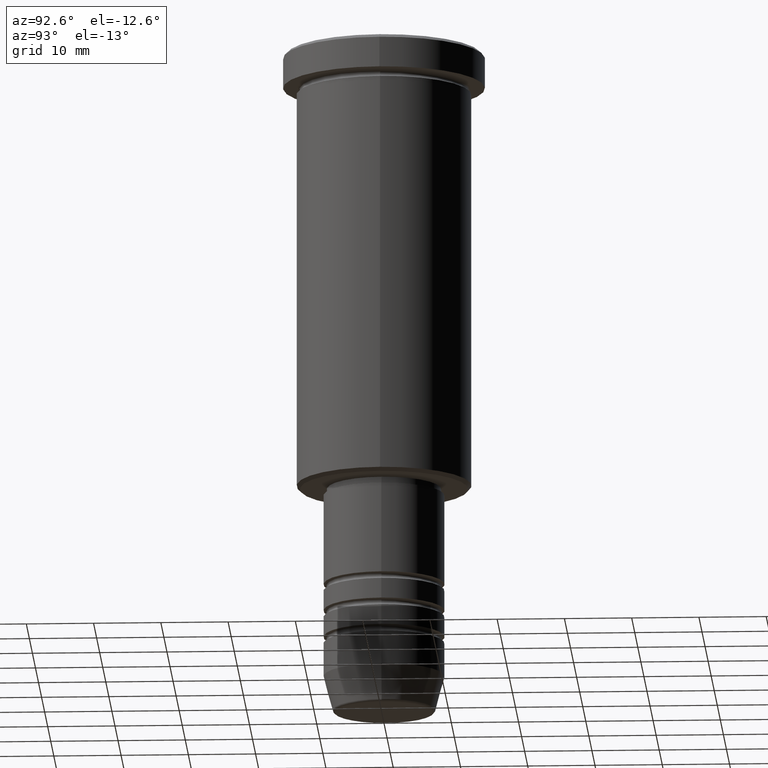
[diagram: clean part render]
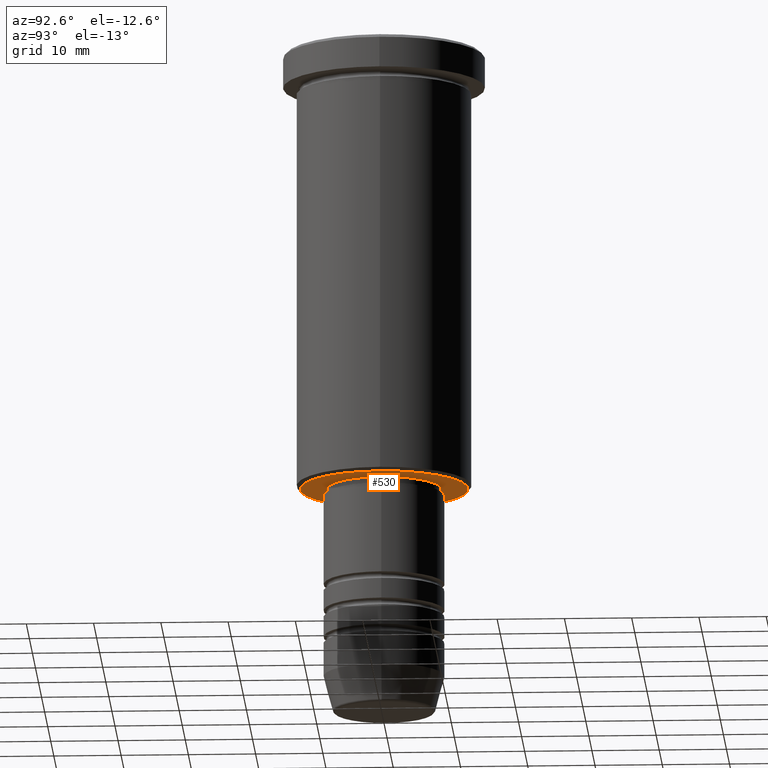
[diagram: same view with one face highlighted and labeled with its STEP entity id]
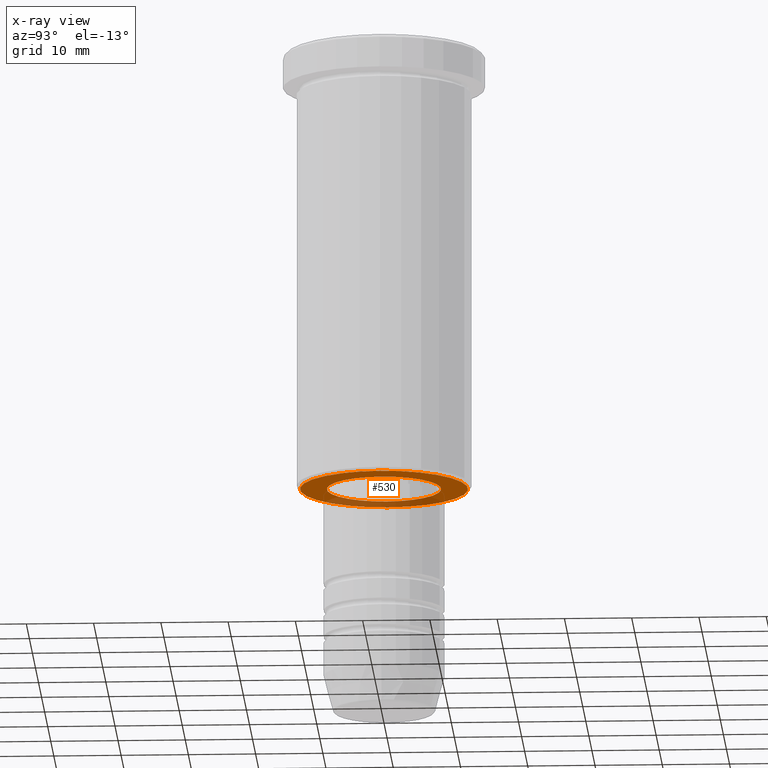
[diagram: x-ray of the same camera — body ghosted, the highlighted face saturated]
A machine part, auxiliary view. The second image highlights one B-rep face of the part: STEP entity #530.
The next image is the same camera in x-ray: the body ghosted, the highlighted face saturated — about 27% of this face is hidden behind the body in this view.
In plain terms, the highlighted planar face has unit normal (0, 0, -1).
Its self-contained STEP definition (entity closure, byte-faithful):
#7 = EDGE_LOOP ( 'NONE', ( #195, #1114 ) ) ;
#101 = AXIS2_PLACEMENT_3D ( 'NONE', #1108, #561, #463 ) ;
#146 = CARTESIAN_POINT ( 'NONE',  ( 0.000000000000000000, 0.000000000000000000, -66.00000000000000000 ) ) ;
#158 = CARTESIAN_POINT ( 'NONE',  ( 0.000000000000000000, 0.000000000000000000, -66.00000000000000000 ) ) ;
#168 = AXIS2_PLACEMENT_3D ( 'NONE', #1138, #314, #571 ) ;
#179 = VERTEX_POINT ( 'NONE', #601 ) ;
#195 = ORIENTED_EDGE ( 'NONE', *, *, #1112, .T. ) ;
#236 = VERTEX_POINT ( 'NONE', #297 ) ;
#297 = CARTESIAN_POINT ( 'NONE',  ( -12.50000000000001066, 1.561424668912876097E-15, -66.00000000000000000 ) ) ;
#314 = DIRECTION ( 'NONE',  ( 0.000000000000000000, 0.000000000000000000, -1.000000000000000000 ) ) ;
#338 = DIRECTION ( 'NONE',  ( -1.000000000000000000, 0.000000000000000000, 0.000000000000000000 ) ) ;
#352 = CIRCLE ( 'NONE', #460, 8.500000000000000000 ) ;
#365 = CIRCLE ( 'NONE', #511, 12.50000000000001066 ) ;
#406 = FACE_OUTER_BOUND ( 'NONE', #727, .T. ) ;
#460 = AXIS2_PLACEMENT_3D ( 'NONE', #158, #772, #863 ) ;
#463 = DIRECTION ( 'NONE',  ( -1.000000000000000000, 0.000000000000000000, 0.000000000000000000 ) ) ;
#511 = AXIS2_PLACEMENT_3D ( 'NONE', #961, #859, #338 ) ;
#530 = ADVANCED_FACE ( 'NONE', ( #406, #913 ), #644, .T. ) ;
#557 = ORIENTED_EDGE ( 'NONE', *, *, #631, .T. ) ;
#561 = DIRECTION ( 'NONE',  ( 0.000000000000000000, 0.000000000000000000, -1.000000000000000000 ) ) ;
#571 = DIRECTION ( 'NONE',  ( -1.000000000000000000, 0.000000000000000000, -0.000000000000000000 ) ) ;
#581 = CARTESIAN_POINT ( 'NONE',  ( 12.50000000000001066, 0.000000000000000000, -66.00000000000000000 ) ) ;
#601 = CARTESIAN_POINT ( 'NONE',  ( 8.500000000000000000, 0.000000000000000000, -66.00000000000000000 ) ) ;
#622 = AXIS2_PLACEMENT_3D ( 'NONE', #146, #1147, #939 ) ;
#631 = EDGE_CURVE ( 'NONE', #1116, #236, #365, .T. ) ;
#644 = PLANE ( 'NONE',  #168 ) ;
#647 = CARTESIAN_POINT ( 'NONE',  ( -8.500000000000000000, 1.040949779275250140E-15, -66.00000000000000000 ) ) ;
#662 = CIRCLE ( 'NONE', #101, 12.50000000000001066 ) ;
#727 = EDGE_LOOP ( 'NONE', ( #557, #945 ) ) ;
#772 = DIRECTION ( 'NONE',  ( -0.000000000000000000, -0.000000000000000000, 1.000000000000000000 ) ) ;
#859 = DIRECTION ( 'NONE',  ( 0.000000000000000000, 0.000000000000000000, -1.000000000000000000 ) ) ;
#863 = DIRECTION ( 'NONE',  ( 1.000000000000000000, 0.000000000000000000, 0.000000000000000000 ) ) ;
#864 = VERTEX_POINT ( 'NONE', #647 ) ;
#913 = FACE_BOUND ( 'NONE', #7, .T. ) ;
#939 = DIRECTION ( 'NONE',  ( 1.000000000000000000, 0.000000000000000000, 0.000000000000000000 ) ) ;
#944 = EDGE_CURVE ( 'NONE', #236, #1116, #662, .T. ) ;
#945 = ORIENTED_EDGE ( 'NONE', *, *, #944, .T. ) ;
#961 = CARTESIAN_POINT ( 'NONE',  ( 0.000000000000000000, 0.000000000000000000, -66.00000000000000000 ) ) ;
#1044 = CIRCLE ( 'NONE', #622, 8.500000000000000000 ) ;
#1063 = EDGE_CURVE ( 'NONE', #864, #179, #352, .T. ) ;
#1108 = CARTESIAN_POINT ( 'NONE',  ( 0.000000000000000000, 0.000000000000000000, -66.00000000000000000 ) ) ;
#1112 = EDGE_CURVE ( 'NONE', #179, #864, #1044, .T. ) ;
#1114 = ORIENTED_EDGE ( 'NONE', *, *, #1063, .T. ) ;
#1116 = VERTEX_POINT ( 'NONE', #581 ) ;
#1138 = CARTESIAN_POINT ( 'NONE',  ( 0.000000000000000000, 13.00000000000000000, -66.00000000000000000 ) ) ;
#1147 = DIRECTION ( 'NONE',  ( -0.000000000000000000, -0.000000000000000000, 1.000000000000000000 ) ) ;